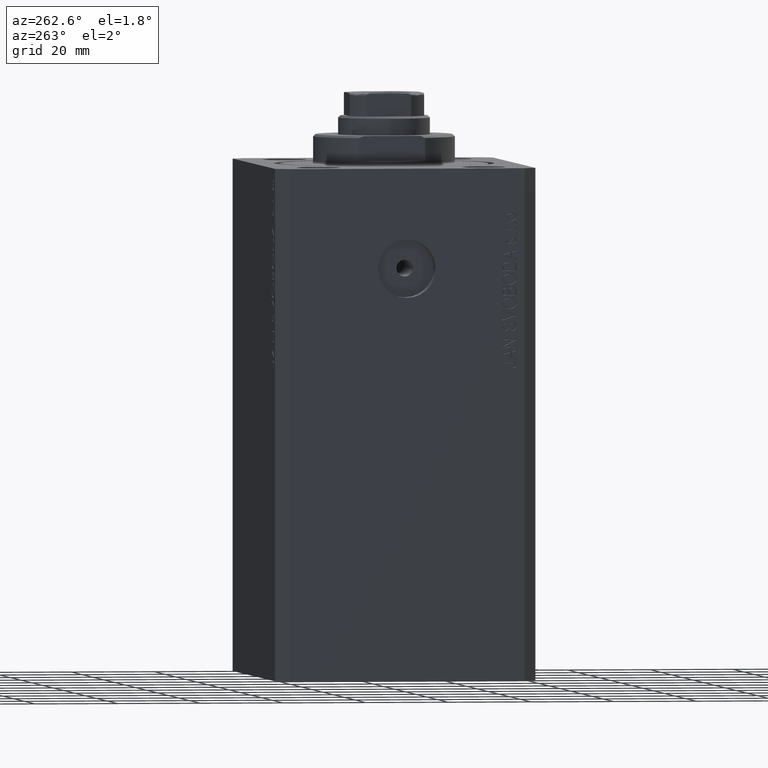
[diagram: clean part render]
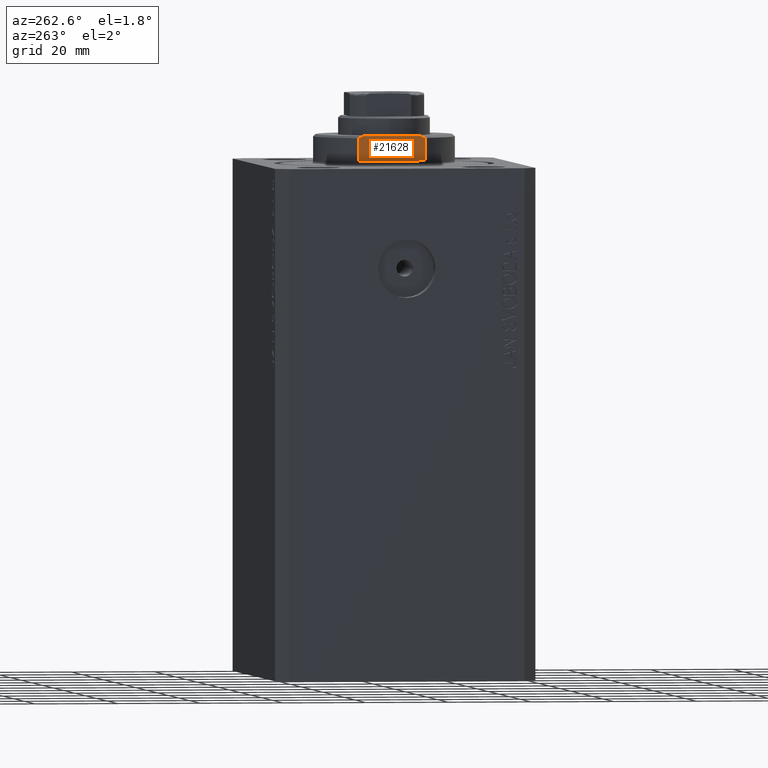
[diagram: same view with one face highlighted and labeled with its STEP entity id]
A machine part, auxiliary view. The second image highlights one B-rep face of the part: STEP entity #21628.
In plain terms, the highlighted planar face has unit normal (-1, 0, 0).
Its self-contained STEP definition (entity closure, byte-faithful):
#772 = CARTESIAN_POINT ( 'NONE',  ( 15.00000000000000000, -8.000000000000001776, -6.500000000000013323 ) ) ;
#1664 = ORIENTED_EDGE ( 'NONE', *, *, #7356, .T. ) ;
#3195 = VERTEX_POINT ( 'NONE', #7735 ) ;
#3585 = VECTOR ( 'NONE', #44222, 1000.000000000000000 ) ;
#3715 = CARTESIAN_POINT ( 'NONE',  ( 15.00000000000000000, -7.629305121525828071, -6.674444648693746984 ) ) ;
#5193 = B_SPLINE_CURVE_WITH_KNOTS ( 'NONE', 3,
 ( #36107, #25981, #5231, #18976 ),
 .UNSPECIFIED., .F., .F.,
 ( 4, 4 ),
 ( 0.03336039268696996268, 0.03459498301323797598 ),
 .UNSPECIFIED. ) ;
#5231 = CARTESIAN_POINT ( 'NONE',  ( 15.00000000000000000, 7.253126193285960532, -6.842000017654668476 ) ) ;
#6387 = VERTEX_POINT ( 'NONE', #43309 ) ;
#6446 = VERTEX_POINT ( 'NONE', #6549 ) ;
#6549 = CARTESIAN_POINT ( 'NONE',  ( 14.99999999999999645, -6.873863542433817031, -7.000000000000000000 ) ) ;
#7356 = EDGE_CURVE ( 'NONE', #6387, #23335, #38471, .T. ) ;
#7735 = CARTESIAN_POINT ( 'NONE',  ( 14.99999999999999645, 6.873863542433817031, -7.000000000000000000 ) ) ;
#9101 = PLANE ( 'NONE',  #11951 ) ;
#11263 = EDGE_CURVE ( 'NONE', #6387, #3195, #5193, .T. ) ;
#11595 = ORIENTED_EDGE ( 'NONE', *, *, #35383, .T. ) ;
#11736 = LINE ( 'NONE', #22554, #29488 ) ;
#11951 = AXIS2_PLACEMENT_3D ( 'NONE', #36599, #40216, #30288 ) ;
#14104 = CARTESIAN_POINT ( 'NONE',  ( 14.99999999999999645, 8.000000000000003553, -1.000000000000000000 ) ) ;
#14212 = ORIENTED_EDGE ( 'NONE', *, *, #37352, .T. ) ;
#15017 = CARTESIAN_POINT ( 'NONE',  ( 15.00000000000000000, -8.000000000000001776, -6.500000000000013323 ) ) ;
#16038 = CARTESIAN_POINT ( 'NONE',  ( 15.00000000000000000, -42.42640687119285303, -1.000000000000000000 ) ) ;
#16493 = LINE ( 'NONE', #16038, #3585 ) ;
#17499 = CARTESIAN_POINT ( 'NONE',  ( 15.00000000000000000, -42.42640687119285303, -7.000000000000000000 ) ) ;
#18976 = CARTESIAN_POINT ( 'NONE',  ( 14.99999999999999645, 6.873863542433817031, -7.000000000000000000 ) ) ;
#20602 = EDGE_CURVE ( 'NONE', #6446, #43691, #42236, .T. ) ;
#21277 = CARTESIAN_POINT ( 'NONE',  ( 15.00000000000000000, -7.254193676168162241, -6.841555306644511170 ) ) ;
#21628 = ADVANCED_FACE ( 'NONE', ( #33663 ), #9101, .T. ) ;
#21667 = VECTOR ( 'NONE', #23842, 1000.000000000000000 ) ;
#22554 = CARTESIAN_POINT ( 'NONE',  ( 15.00000000000000000, -8.000000000000001776, -7.000000000000000000 ) ) ;
#22994 = DIRECTION ( 'NONE',  ( 0.000000000000000000, 0.000000000000000000, -1.000000000000000000 ) ) ;
#23335 = VERTEX_POINT ( 'NONE', #14104 ) ;
#23783 = VECTOR ( 'NONE', #23871, 1000.000000000000000 ) ;
#23842 = DIRECTION ( 'NONE',  ( 0.000000000000000000, -1.000000000000000000, -0.000000000000000000 ) ) ;
#23871 = DIRECTION ( 'NONE',  ( -0.000000000000000000, -0.000000000000000000, 1.000000000000000000 ) ) ;
#25981 = CARTESIAN_POINT ( 'NONE',  ( 15.00000000000000000, 7.628315461082496363, -6.674910371255315056 ) ) ;
#27229 = LINE ( 'NONE', #17499, #21667 ) ;
#29488 = VECTOR ( 'NONE', #22994, 1000.000000000000000 ) ;
#30288 = DIRECTION ( 'NONE',  ( -0.000000000000000000, 0.000000000000000000, -1.000000000000000000 ) ) ;
#32952 = EDGE_LOOP ( 'NONE', ( #1664, #14212, #11595, #33434, #44374, #39205 ) ) ;
#33434 = ORIENTED_EDGE ( 'NONE', *, *, #20602, .F. ) ;
#33663 = FACE_OUTER_BOUND ( 'NONE', #32952, .T. ) ;
#34164 = VERTEX_POINT ( 'NONE', #44297 ) ;
#34228 = CARTESIAN_POINT ( 'NONE',  ( 15.00000000000000000, 8.000000000000001776, -7.000000000000000000 ) ) ;
#35383 = EDGE_CURVE ( 'NONE', #34164, #43691, #11736, .T. ) ;
#36107 = CARTESIAN_POINT ( 'NONE',  ( 15.00000000000000000, 8.000000000000001776, -6.500000000000013323 ) ) ;
#36599 = CARTESIAN_POINT ( 'NONE',  ( 15.00000000000000000, -42.42640687119285303, -1.000000000000000000 ) ) ;
#37352 = EDGE_CURVE ( 'NONE', #23335, #34164, #16493, .T. ) ;
#38471 = LINE ( 'NONE', #34228, #23783 ) ;
#39205 = ORIENTED_EDGE ( 'NONE', *, *, #11263, .F. ) ;
#40216 = DIRECTION ( 'NONE',  ( 1.000000000000000000, 0.000000000000000000, -0.000000000000000000 ) ) ;
#40957 = EDGE_CURVE ( 'NONE', #3195, #6446, #27229, .T. ) ;
#42236 = B_SPLINE_CURVE_WITH_KNOTS ( 'NONE', 3,
 ( #44544, #21277, #3715, #772 ),
 .UNSPECIFIED., .F., .F.,
 ( 4, 4 ),
 ( 0.04875332532859021767, 0.04998905627745620778 ),
 .UNSPECIFIED. ) ;
#43309 = CARTESIAN_POINT ( 'NONE',  ( 15.00000000000000000, 8.000000000000001776, -6.500000000000013323 ) ) ;
#43691 = VERTEX_POINT ( 'NONE', #15017 ) ;
#44222 = DIRECTION ( 'NONE',  ( 0.000000000000000000, -1.000000000000000000, -0.000000000000000000 ) ) ;
#44297 = CARTESIAN_POINT ( 'NONE',  ( 14.99999999999999645, -8.000000000000003553, -1.000000000000000000 ) ) ;
#44374 = ORIENTED_EDGE ( 'NONE', *, *, #40957, .F. ) ;
#44544 = CARTESIAN_POINT ( 'NONE',  ( 14.99999999999999645, -6.873863542433817031, -7.000000000000000000 ) ) ;